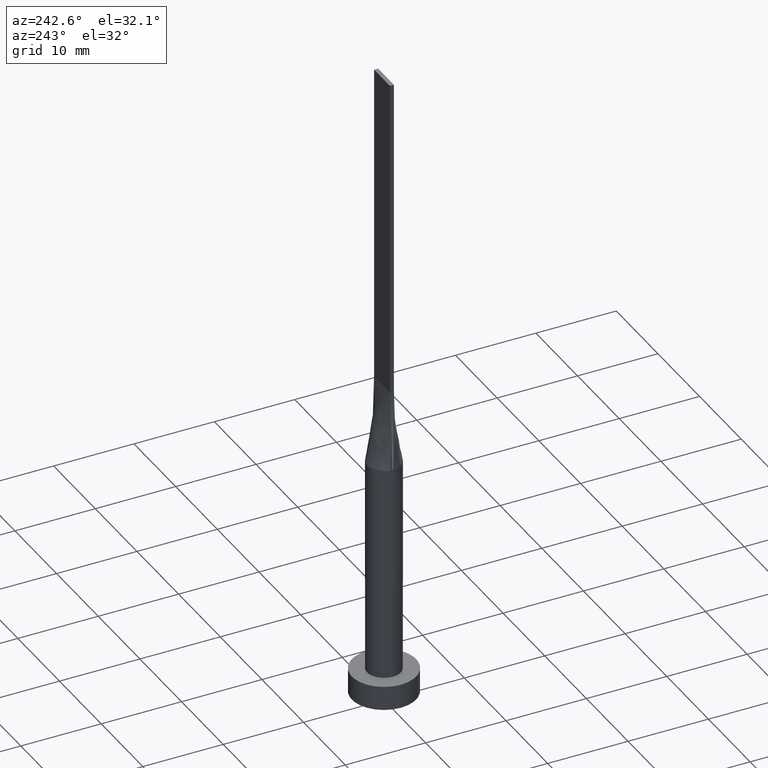
[diagram: clean part render]
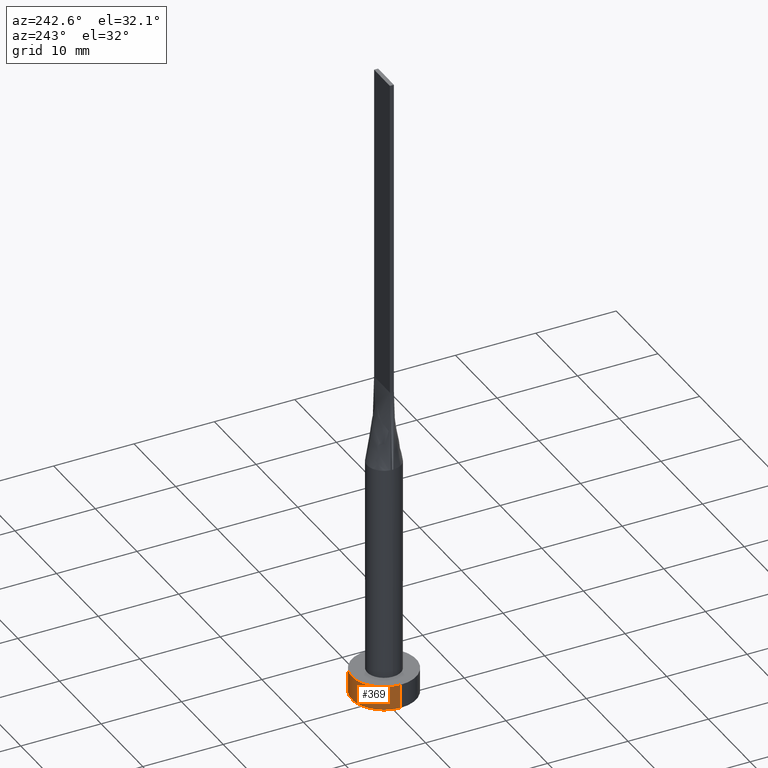
[diagram: same view with one face highlighted and labeled with its STEP entity id]
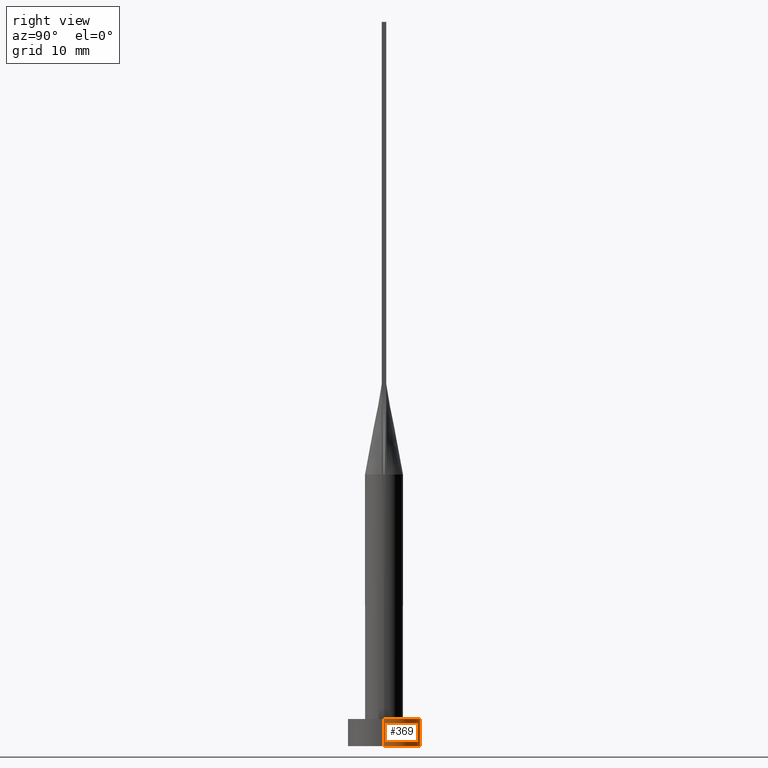
[diagram: same view with one face highlighted and labeled with its STEP entity id]
A machine part, auxiliary view. The second image highlights one B-rep face of the part: STEP entity #369.
A second angle (right view) of the same face is appended — the face is thin or edge-on in the first view.
In plain terms, the highlighted cylindrical surface (edge-blend (fillet) strip) has radius 4 mm, axis along (-0, -0, -1).
Its self-contained STEP definition (entity closure, byte-faithful):
#33 = ORIENTED_EDGE ( 'NONE', *, *, #412, .F. ) ;
#37 = DIRECTION ( 'NONE',  ( 0.000000000000000000, 0.000000000000000000, 1.000000000000000000 ) ) ;
#56 = CARTESIAN_POINT ( 'NONE',  ( 4.000000000000000000, 4.898587196589412829E-16, 0.000000000000000000 ) ) ;
#91 = EDGE_CURVE ( 'NONE', #195, #384, #339, .T. ) ;
#96 = CIRCLE ( 'NONE', #239, 4.000000000000000000 ) ;
#97 = EDGE_CURVE ( 'NONE', #384, #166, #96, .T. ) ;
#105 = ORIENTED_EDGE ( 'NONE', *, *, #97, .T. ) ;
#114 = ORIENTED_EDGE ( 'NONE', *, *, #461, .F. ) ;
#128 = DIRECTION ( 'NONE',  ( -0.000000000000000000, -0.000000000000000000, -1.000000000000000000 ) ) ;
#166 = VERTEX_POINT ( 'NONE', #558 ) ;
#174 = DIRECTION ( 'NONE',  ( -0.000000000000000000, -0.000000000000000000, -1.000000000000000000 ) ) ;
#175 = DIRECTION ( 'NONE',  ( 0.000000000000000000, 0.000000000000000000, 1.000000000000000000 ) ) ;
#195 = VERTEX_POINT ( 'NONE', #556 ) ;
#197 = CYLINDRICAL_SURFACE ( 'NONE', #563, 4.000000000000000000 ) ;
#221 = CARTESIAN_POINT ( 'NONE',  ( 0.000000000000000000, 0.000000000000000000, 3.000000000000000000 ) ) ;
#231 = AXIS2_PLACEMENT_3D ( 'NONE', #221, #37, #575 ) ;
#239 = AXIS2_PLACEMENT_3D ( 'NONE', #518, #175, #487 ) ;
#253 = VECTOR ( 'NONE', #174, 1000.000000000000000 ) ;
#263 = FACE_OUTER_BOUND ( 'NONE', #489, .T. ) ;
#292 = DIRECTION ( 'NONE',  ( -0.000000000000000000, -0.000000000000000000, -1.000000000000000000 ) ) ;
#295 = ORIENTED_EDGE ( 'NONE', *, *, #91, .T. ) ;
#321 = CIRCLE ( 'NONE', #231, 4.000000000000000000 ) ;
#336 = VERTEX_POINT ( 'NONE', #475 ) ;
#339 = LINE ( 'NONE', #569, #347 ) ;
#347 = VECTOR ( 'NONE', #128, 1000.000000000000000 ) ;
#369 = ADVANCED_FACE ( 'NONE', ( #263 ), #197, .T. ) ;
#374 = CARTESIAN_POINT ( 'NONE',  ( 0.000000000000000000, 0.000000000000000000, 3.000000000000000000 ) ) ;
#384 = VERTEX_POINT ( 'NONE', #56 ) ;
#394 = LINE ( 'NONE', #565, #253 ) ;
#412 = EDGE_CURVE ( 'NONE', #336, #166, #394, .T. ) ;
#461 = EDGE_CURVE ( 'NONE', #195, #336, #321, .T. ) ;
#471 = DIRECTION ( 'NONE',  ( -1.000000000000000000, 0.000000000000000000, 0.000000000000000000 ) ) ;
#475 = CARTESIAN_POINT ( 'NONE',  ( -4.000000000000000000, 0.000000000000000000, 3.000000000000000000 ) ) ;
#487 = DIRECTION ( 'NONE',  ( 1.000000000000000000, 0.000000000000000000, 0.000000000000000000 ) ) ;
#489 = EDGE_LOOP ( 'NONE', ( #114, #295, #105, #33 ) ) ;
#518 = CARTESIAN_POINT ( 'NONE',  ( 0.000000000000000000, 0.000000000000000000, 0.000000000000000000 ) ) ;
#556 = CARTESIAN_POINT ( 'NONE',  ( 4.000000000000000000, 4.898587196589412829E-16, 3.000000000000000000 ) ) ;
#558 = CARTESIAN_POINT ( 'NONE',  ( -4.000000000000000000, 0.000000000000000000, 0.000000000000000000 ) ) ;
#563 = AXIS2_PLACEMENT_3D ( 'NONE', #374, #292, #471 ) ;
#565 = CARTESIAN_POINT ( 'NONE',  ( -4.000000000000000000, 0.000000000000000000, 3.000000000000000000 ) ) ;
#569 = CARTESIAN_POINT ( 'NONE',  ( 4.000000000000000000, 4.898587196589412829E-16, 3.000000000000000000 ) ) ;
#575 = DIRECTION ( 'NONE',  ( 1.000000000000000000, 0.000000000000000000, 0.000000000000000000 ) ) ;